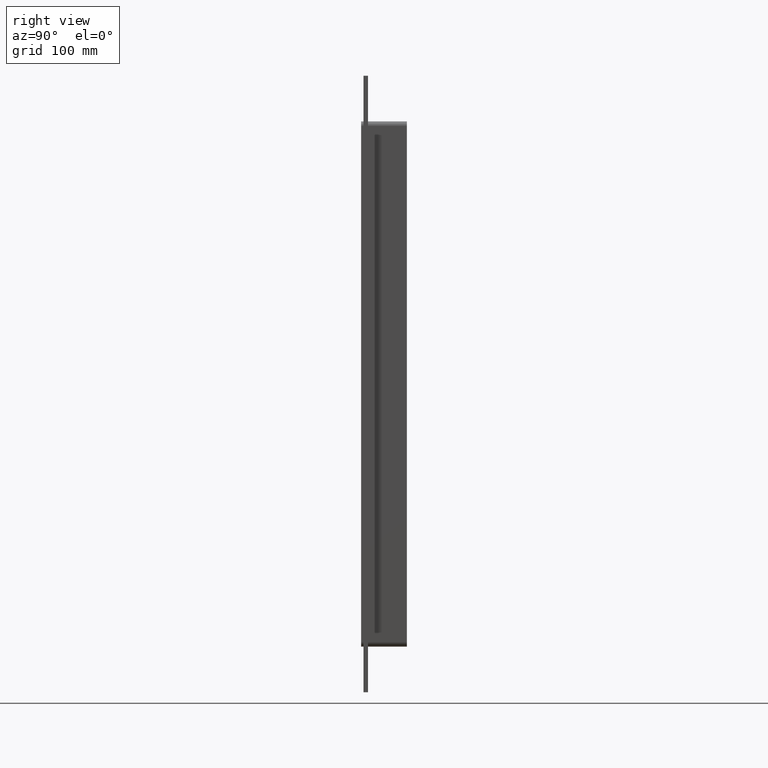
[diagram: clean part render]
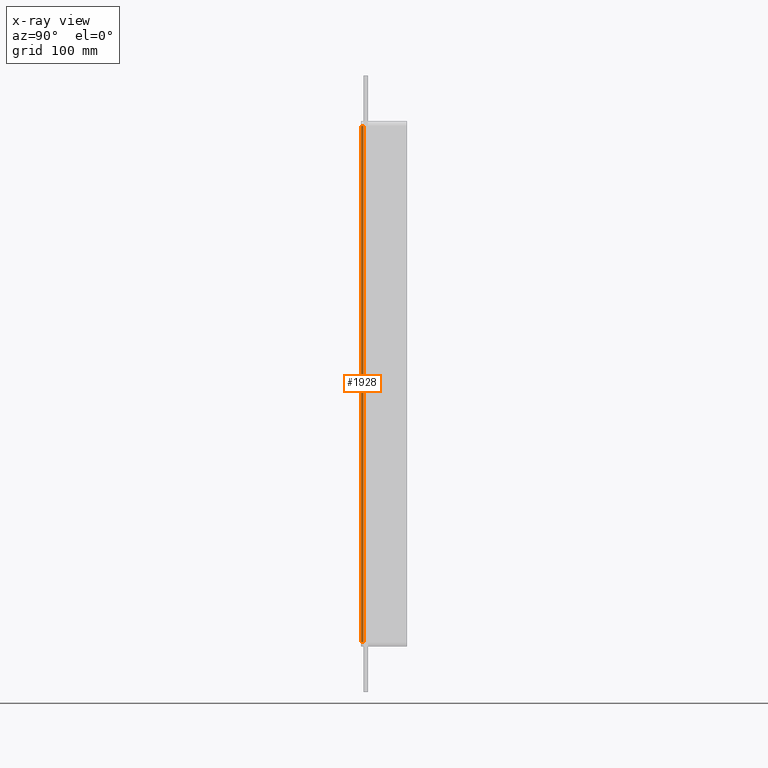
[diagram: x-ray — body ghosted, one internal face saturated and labeled with its STEP entity id]
A machine part, right view, then the same camera in x-ray: the body is ghosted and one INTERNAL B-rep face — a face not visible from any outside direction — is saturated and labeled: STEP entity #1928.
In plain terms, the highlighted planar face has unit normal (-1, 0, 0).
Its self-contained STEP definition (entity closure, byte-faithful):
#1027=CARTESIAN_POINT('',(-196.75000000000006,-3.0,339.00000000000006));
#1028=VERTEX_POINT('',#1027);
#1036=CARTESIAN_POINT('',(-196.75000000000006,-3.0,-339.00000000000006));
#1037=VERTEX_POINT('',#1036);
#1038=CARTESIAN_POINT('',(-196.75000000000006,-3.0,339.0));
#1039=DIRECTION('',(0.0,0.0,-1.0));
#1040=VECTOR('',#1039,678.0);
#1041=LINE('',#1038,#1040);
#1042=EDGE_CURVE('',#1028,#1037,#1041,.T.);
#1581=CARTESIAN_POINT('',(-196.75000000000006,0.0,-339.00000000000006));
#1582=VERTEX_POINT('',#1581);
#1592=CARTESIAN_POINT('',(-196.75000000000006,0.0,339.00000000000006));
#1593=VERTEX_POINT('',#1592);
#1594=CARTESIAN_POINT('',(-196.75000000000006,0.0,339.0));
#1595=DIRECTION('',(0.0,0.0,-1.0));
#1596=VECTOR('',#1595,678.0);
#1597=LINE('',#1594,#1596);
#1598=EDGE_CURVE('',#1593,#1582,#1597,.T.);
#1867=CARTESIAN_POINT('',(-196.75000000000006,0.0,339.00000000000006));
#1868=DIRECTION('',(0.0,-1.0,0.0));
#1869=VECTOR('',#1868,3.0);
#1870=LINE('',#1867,#1869);
#1871=EDGE_CURVE('',#1593,#1028,#1870,.T.);
#1912=CARTESIAN_POINT('',(-196.75000000000006,0.0,-345.0));
#1913=DIRECTION('',(-1.0,0.0,0.0));
#1914=DIRECTION('',(0.0,0.0,1.0));
#1915=AXIS2_PLACEMENT_3D('',#1912,#1913,#1914);
#1916=PLANE('',#1915);
#1917=ORIENTED_EDGE('',*,*,#1598,.T.);
#1918=CARTESIAN_POINT('',(-196.75000000000006,-3.0,-339.00000000000006));
#1919=DIRECTION('',(0.0,1.0,0.0));
#1920=VECTOR('',#1919,3.0);
#1921=LINE('',#1918,#1920);
#1922=EDGE_CURVE('',#1037,#1582,#1921,.T.);
#1923=ORIENTED_EDGE('',*,*,#1922,.F.);
#1924=ORIENTED_EDGE('',*,*,#1042,.F.);
#1925=ORIENTED_EDGE('',*,*,#1871,.F.);
#1926=EDGE_LOOP('',(#1917,#1923,#1924,#1925));
#1927=FACE_OUTER_BOUND('',#1926,.T.);
#1928=ADVANCED_FACE('',(#1927),#1916,.T.);